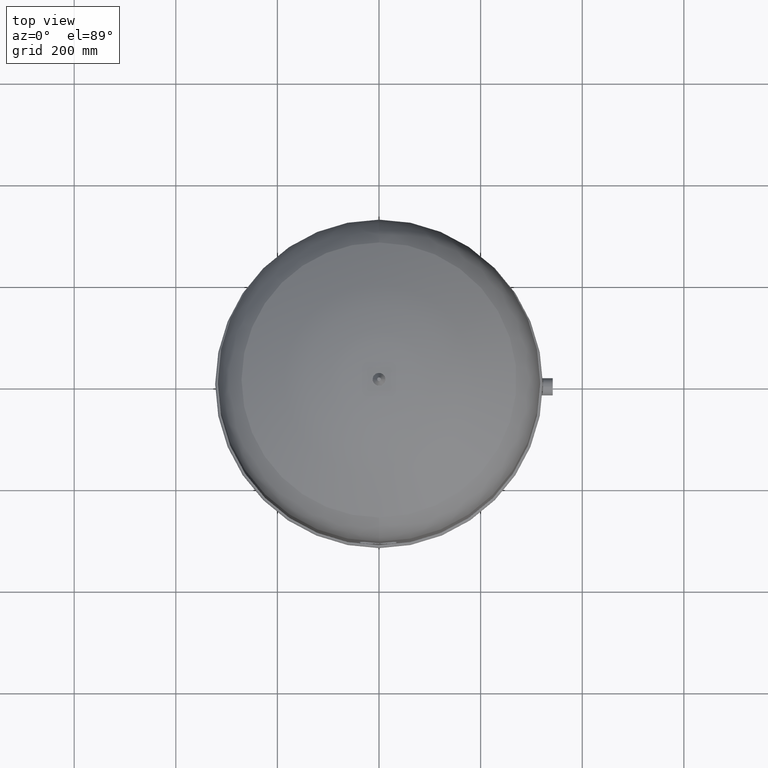
[diagram: clean part render]
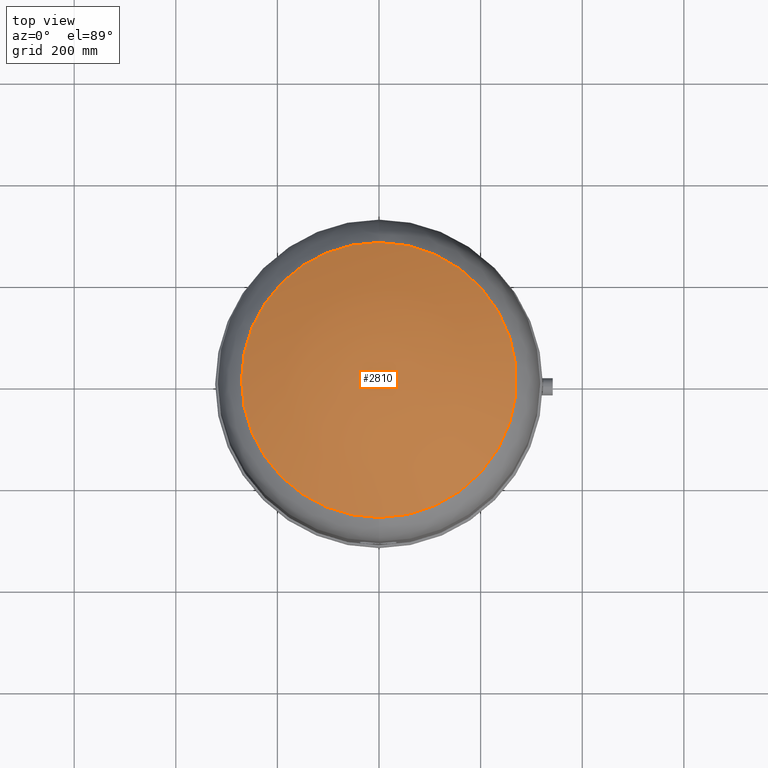
[diagram: same view with one face highlighted and labeled with its STEP entity id]
A machine part, top view. The second image highlights one B-rep face of the part: STEP entity #2810.
In plain terms, the highlighted face is a freeform B-spline surface patch.
Its self-contained STEP definition (entity closure, byte-faithful):
#2736=CARTESIAN_POINT('',(8.065826E-015,-270.639024390243830,1007.086439681297500));
#2737=VERTEX_POINT('',#2736);
#2755=CARTESIAN_POINT('',(-2.507680E-014,270.639024390243830,1007.086439681297500));
#2756=VERTEX_POINT('',#2755);
#2764=CARTESIAN_POINT('',(-7.495146E-015,-1.431249E-014,1007.086439681297500));
#2765=DIRECTION('',(0.0,0.0,1.0));
#2766=DIRECTION('',(-1.0,0.0,0.0));
#2767=AXIS2_PLACEMENT_3D('',#2764,#2765,#2766);
#2768=CIRCLE('',#2767,270.639024390243830);
#2769=EDGE_CURVE('',#2737,#2756,#2768,.T.);
#2774=CARTESIAN_POINT('',(-229.211814269567980,270.639024390243890,941.099250446163070));
#2775=CARTESIAN_POINT('',(-319.553692100537090,-2.842171E-014,1085.0));
#2776=CARTESIAN_POINT('',(-229.211814269568010,-270.639024390243950,941.099250446163300));
#2777=CARTESIAN_POINT('',(-5.684342E-014,270.639024390243890,1085.0));
#2778=CARTESIAN_POINT('',(0.0,8.431219E-015,1285.618000265392500));
#2779=CARTESIAN_POINT('',(5.684342E-014,-270.639024390243950,1085.000000000000200));
#2780=CARTESIAN_POINT('',(229.211814269567810,270.639024390243890,941.099250446163070));
#2781=CARTESIAN_POINT('',(319.553692100536920,-2.842171E-014,1085.0));
#2782=CARTESIAN_POINT('',(229.211814269568010,-270.639024390243950,941.099250446163070));
#2790=(BOUNDED_SURFACE()B_SPLINE_SURFACE(2,2,((#2774,#2777,#2780),(#2775,#2778,#2781),(#2776,#2779,#2782)),.UNSPECIFIED.,.F.,.F.,.U.)B_SPLINE_SURFACE_WITH_KNOTS((3,3),(3,3),(-0.560615186256406,0.560615186256406),(0.0,1.121230372512813),.UNSPECIFIED.)GEOMETRIC_REPRESENTATION_ITEM()RATIONAL_B_SPLINE_SURFACE(((1.0,0.846928172261881,1.0),(0.846928172261881,0.717287328970851,0.846928172261881),(1.0,0.846928172261881,1.0)))REPRESENTATION_ITEM('')SURFACE());
#2791=CARTESIAN_POINT('',(-270.639024390243830,-1.431249E-014,1007.086439681297600));
#2792=VERTEX_POINT('',#2791);
#2793=CARTESIAN_POINT('',(-7.495146E-015,-1.431249E-014,1007.086439681297500));
#2794=DIRECTION('',(0.0,0.0,1.0));
#2795=DIRECTION('',(-1.0,0.0,0.0));
#2796=AXIS2_PLACEMENT_3D('',#2793,#2794,#2795);
#2797=CIRCLE('',#2796,270.639024390243830);
#2798=EDGE_CURVE('',#2792,#2737,#2797,.T.);
#2799=ORIENTED_EDGE('',*,*,#2798,.T.);
#2800=ORIENTED_EDGE('',*,*,#2769,.T.);
#2801=CARTESIAN_POINT('',(-7.495146E-015,-1.431249E-014,1007.086439681297500));
#2802=DIRECTION('',(0.0,0.0,1.0));
#2803=DIRECTION('',(-1.0,0.0,0.0));
#2804=AXIS2_PLACEMENT_3D('',#2801,#2802,#2803);
#2805=CIRCLE('',#2804,270.639024390243830);
#2806=EDGE_CURVE('',#2756,#2792,#2805,.T.);
#2807=ORIENTED_EDGE('',*,*,#2806,.T.);
#2808=EDGE_LOOP('',(#2799,#2800,#2807));
#2809=FACE_OUTER_BOUND('',#2808,.T.);
#2810=ADVANCED_FACE('',(#2809),#2790,.T.);